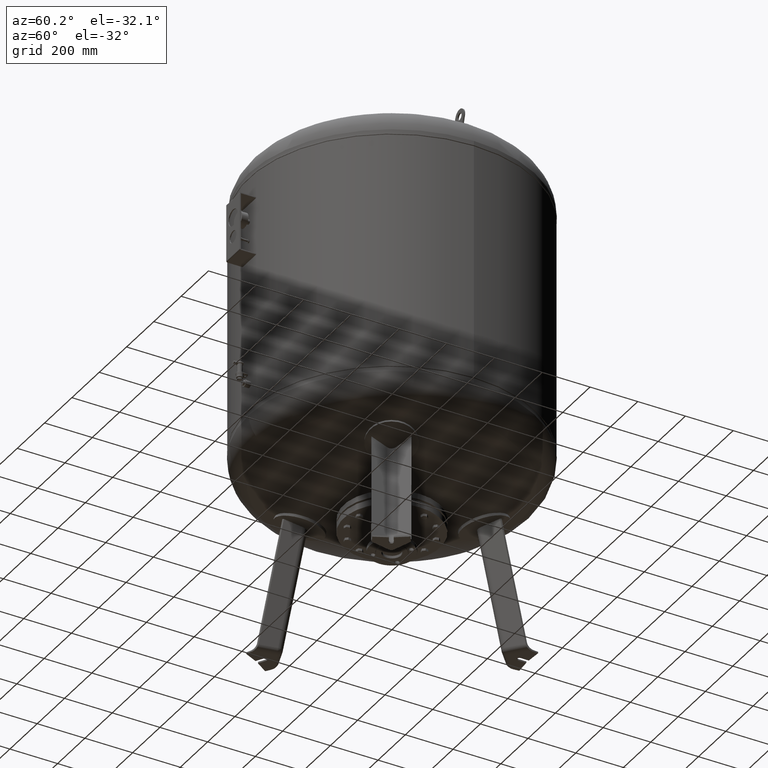
[diagram: clean part render]
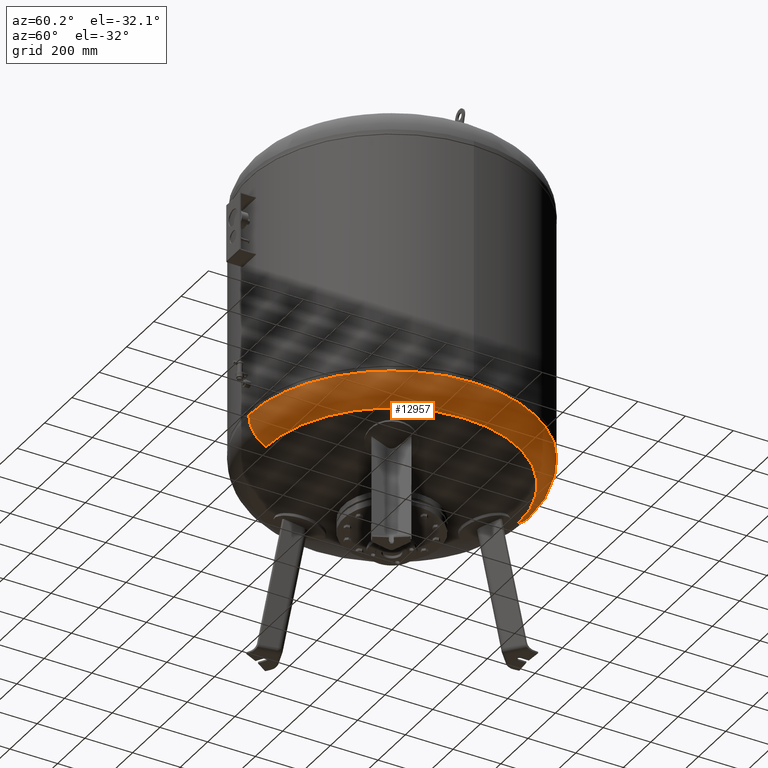
[diagram: same view with one face highlighted and labeled with its STEP entity id]
A machine part, auxiliary view. The second image highlights one B-rep face of the part: STEP entity #12957.
In plain terms, the highlighted toroidal blend (fillet) surface has major radius 473 mm and minor (blend) radius 127 mm.
Its self-contained STEP definition (entity closure, byte-faithful):
#12843=CARTESIAN_POINT('',(599.999999999999890,3.010780E-014,695.087542566272300));
#12844=VERTEX_POINT('',#12843);
#12851=CARTESIAN_POINT('',(-1.445307E-013,600.0,695.087542566272420));
#12852=VERTEX_POINT('',#12851);
#12853=CARTESIAN_POINT('',(-3.551733E-014,-4.336858E-014,695.087542566272300));
#12854=DIRECTION('',(0.0,0.0,1.0));
#12855=DIRECTION('',(-1.0,0.0,0.0));
#12856=AXIS2_PLACEMENT_3D('',#12853,#12854,#12855);
#12857=CIRCLE('',#12856,600.0);
#12858=EDGE_CURVE('',#12844,#12852,#12857,.T.);
#12875=CARTESIAN_POINT('',(-7.105427E-014,-600.0,695.087542566272190));
#12876=VERTEX_POINT('',#12875);
#12877=CARTESIAN_POINT('',(-5.387807E-014,-528.621296296296240,580.915429516194880));
#12878=VERTEX_POINT('',#12877);
#12879=CARTESIAN_POINT('',(-7.105427E-014,-472.999999999999940,695.087542566272190));
#12880=DIRECTION('',(1.0,0.0,0.0));
#12881=DIRECTION('',(0.0,-1.0,0.0));
#12882=AXIS2_PLACEMENT_3D('',#12879,#12880,#12881);
#12883=CIRCLE('',#12882,127.000000000000010);
#12884=EDGE_CURVE('',#12876,#12878,#12883,.T.);
#12894=CARTESIAN_POINT('',(-1.186134E-013,528.621296296296240,580.915429516195100));
#12895=VERTEX_POINT('',#12894);
#12896=CARTESIAN_POINT('',(-1.289782E-013,472.999999999999830,695.087542566272420));
#12897=DIRECTION('',(-1.0,0.0,0.0));
#12898=DIRECTION('',(0.0,1.0,0.0));
#12899=AXIS2_PLACEMENT_3D('',#12896,#12897,#12898);
#12900=CIRCLE('',#12899,127.000000000000010);
#12901=EDGE_CURVE('',#12852,#12895,#12900,.T.);
#12929=CARTESIAN_POINT('',(-1.834112E-014,-2.239550E-014,580.915429516194990));
#12930=DIRECTION('',(0.0,0.0,1.0));
#12931=DIRECTION('',(-1.0,0.0,0.0));
#12932=AXIS2_PLACEMENT_3D('',#12929,#12930,#12931);
#12933=CIRCLE('',#12932,528.621296296296240);
#12934=EDGE_CURVE('',#12878,#12895,#12933,.T.);
#12939=CARTESIAN_POINT('',(-7.105427E-014,-4.336858E-014,695.087542566272300));
#12940=DIRECTION('',(-1.504413E-016,-1.836970E-016,1.0));
#12941=DIRECTION('',(0.0,-1.0,0.0));
#12942=AXIS2_PLACEMENT_3D('',#12939,#12940,#12941);
#12943=TOROIDAL_SURFACE('',#12942,472.999999999999890,127.000000000000010);
#12944=ORIENTED_EDGE('',*,*,#12884,.T.);
#12945=ORIENTED_EDGE('',*,*,#12934,.T.);
#12946=ORIENTED_EDGE('',*,*,#12901,.F.);
#12947=ORIENTED_EDGE('',*,*,#12858,.F.);
#12948=CARTESIAN_POINT('',(-3.551733E-014,-4.336858E-014,695.087542566272300));
#12949=DIRECTION('',(0.0,0.0,1.0));
#12950=DIRECTION('',(-1.0,0.0,0.0));
#12951=AXIS2_PLACEMENT_3D('',#12948,#12949,#12950);
#12952=CIRCLE('',#12951,600.0);
#12953=EDGE_CURVE('',#12876,#12844,#12952,.T.);
#12954=ORIENTED_EDGE('',*,*,#12953,.F.);
#12955=EDGE_LOOP('',(#12944,#12945,#12946,#12947,#12954));
#12956=FACE_OUTER_BOUND('',#12955,.T.);
#12957=ADVANCED_FACE('',(#12956),#12943,.T.);